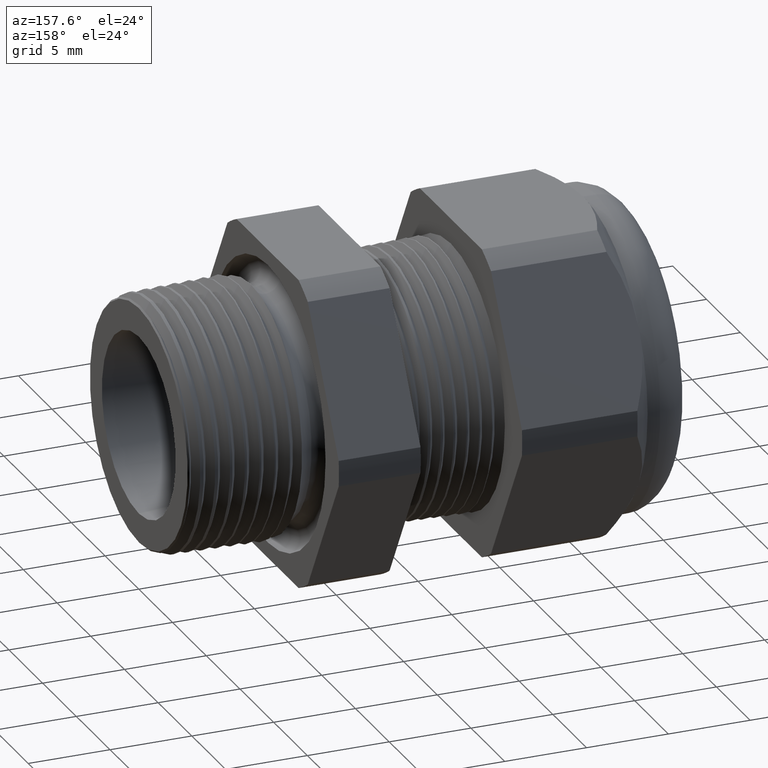
[diagram: clean part render]
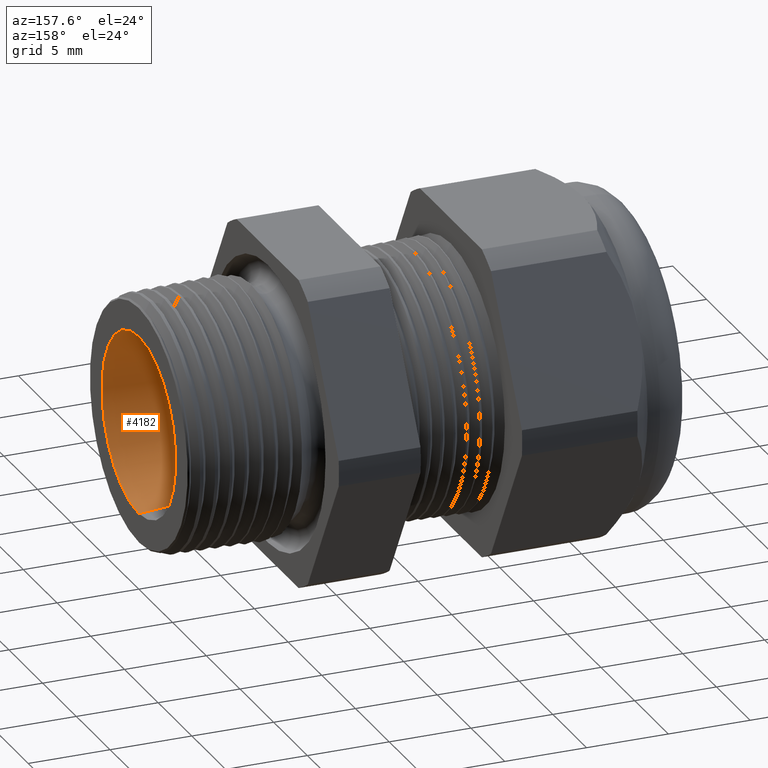
[diagram: same view with one face highlighted and labeled with its STEP entity id]
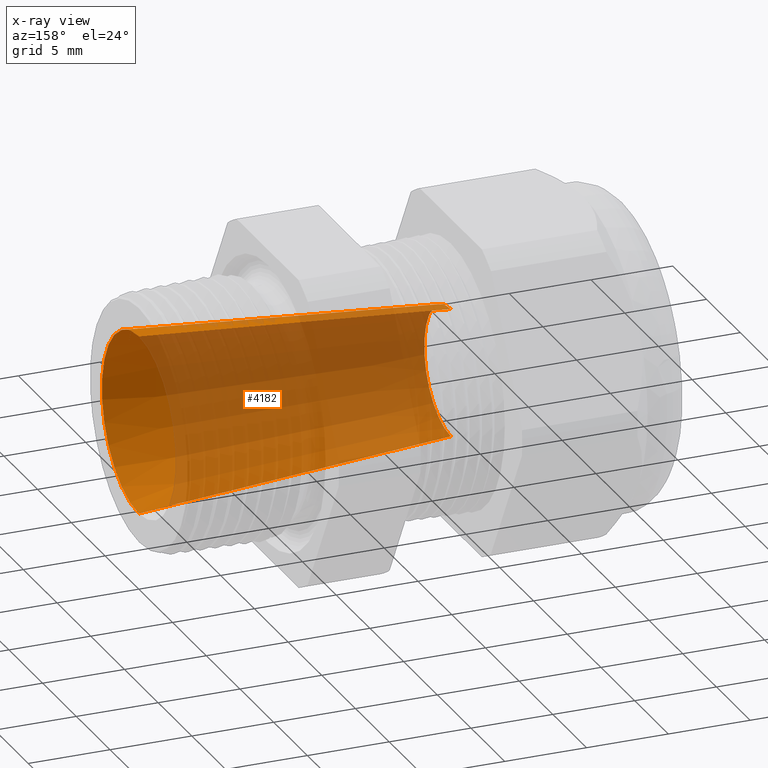
[diagram: x-ray of the same camera — body ghosted, the highlighted face saturated]
A machine part, auxiliary view. The second image highlights one B-rep face of the part: STEP entity #4182.
The next image is the same camera in x-ray: the body ghosted, the highlighted face saturated — about 79% of this face is hidden behind the body in this view.
In plain terms, the highlighted conical surface has half-angle 4.594 deg.
Its self-contained STEP definition (entity closure, byte-faithful):
#75 = VERTEX_POINT ( 'NONE', #1384 ) ;
#1384 = CARTESIAN_POINT ( 'NONE',  ( -0.7508661417322833900, 0.0000000000000000000, -0.1550000000000000000 ) ) ;
#3520 = CARTESIAN_POINT ( 'NONE',  ( -0.7508661417322833900, 2.267665485113262000E-017, 0.1550000000000000000 ) ) ;
#3531 = DIRECTION ( 'NONE',  ( 0.0000000000000000000, 0.0000000000000000000, -1.000000000000000000 ) ) ;
#3532 = DIRECTION ( 'NONE',  ( 1.000000000000000000, 0.0000000000000000000, 0.0000000000000000000 ) ) ;
#3533 = CARTESIAN_POINT ( 'NONE',  ( -0.7508661417322833900, 0.0000000000000000000, 0.0000000000000000000 ) ) ;
#3534 = AXIS2_PLACEMENT_3D ( 'NONE', #3533, #3532, #3531 ) ;
#3535 = CIRCLE ( 'NONE', #3534, 0.1550000000000000000 ) ;
#3536 = FACE_OUTER_BOUND ( 'NONE', #4184, .T. ) ;
#3537 = CARTESIAN_POINT ( 'NONE',  ( 0.0000000000000000000, 2.637128431548127100E-017, 0.2153378781036457400 ) ) ;
#3543 = DIRECTION ( 'NONE',  ( 0.9967868727108976100, 0.0000000000000000000, -0.08009950306480641300 ) ) ;
#3544 = VECTOR ( 'NONE', #3543, 39.37007874015748900 ) ;
#3545 = CARTESIAN_POINT ( 'NONE',  ( -0.7508661417322833900, 0.0000000000000000000, -0.1550000000000000000 ) ) ;
#3546 = LINE ( 'NONE', #3545, #3544 ) ;
#3547 = CARTESIAN_POINT ( 'NONE',  ( 0.0000000000000000000, 0.0000000000000000000, -0.2153378781036457400 ) ) ;
#3571 = DIRECTION ( 'NONE',  ( 0.0000000000000000000, 0.0000000000000000000, -1.000000000000000000 ) ) ;
#3572 = DIRECTION ( 'NONE',  ( 1.000000000000000000, 0.0000000000000000000, 0.0000000000000000000 ) ) ;
#3573 = CARTESIAN_POINT ( 'NONE',  ( 0.0000000000000000000, 0.0000000000000000000, 0.0000000000000000000 ) ) ;
#3574 = AXIS2_PLACEMENT_3D ( 'NONE', #3573, #3572, #3571 ) ;
#3575 = CIRCLE ( 'NONE', #3574, 0.2153378781036457400 ) ;
#3580 = DIRECTION ( 'NONE',  ( 0.9967868727108976100, 9.809360004160878300E-018, 0.08009950306480641300 ) ) ;
#3581 = VECTOR ( 'NONE', #3580, 39.37007874015748900 ) ;
#3582 = CARTESIAN_POINT ( 'NONE',  ( -0.7508661417322833900, 1.898202538678397300E-017, 0.1550000000000000000 ) ) ;
#3583 = LINE ( 'NONE', #3582, #3581 ) ;
#3587 = DIRECTION ( 'NONE',  ( 0.0000000000000000000, 0.0000000000000000000, -1.000000000000000000 ) ) ;
#3588 = DIRECTION ( 'NONE',  ( 1.000000000000000000, 0.0000000000000000000, 0.0000000000000000000 ) ) ;
#3589 = CARTESIAN_POINT ( 'NONE',  ( -0.7508661417322833900, 0.0000000000000000000, 0.0000000000000000000 ) ) ;
#3590 = AXIS2_PLACEMENT_3D ( 'NONE', #3589, #3588, #3587 ) ;
#3592 = CONICAL_SURFACE ( 'NONE', #3590, 0.1550000000000000000, 0.08018540344487304300 ) ;
#4150 = EDGE_CURVE ( 'NONE', #4155, #75, #3535, .T. ) ;
#4155 = VERTEX_POINT ( 'NONE', #3520 ) ;
#4173 = VERTEX_POINT ( 'NONE', #3547 ) ;
#4175 = EDGE_CURVE ( 'NONE', #75, #4173, #3546, .T. ) ;
#4178 = ORIENTED_EDGE ( 'NONE', *, *, #4175, .F. ) ;
#4179 = VERTEX_POINT ( 'NONE', #3537 ) ;
#4180 = ORIENTED_EDGE ( 'NONE', *, *, #4190, .T. ) ;
#4182 = ADVANCED_FACE ( 'NONE', ( #3536 ), #3592, .F. ) ;
#4183 = ORIENTED_EDGE ( 'NONE', *, *, #4187, .T. ) ;
#4184 = EDGE_LOOP ( 'NONE', ( #4185, #4183, #4180, #4178 ) ) ;
#4185 = ORIENTED_EDGE ( 'NONE', *, *, #4150, .F. ) ;
#4187 = EDGE_CURVE ( 'NONE', #4155, #4179, #3583, .T. ) ;
#4190 = EDGE_CURVE ( 'NONE', #4179, #4173, #3575, .T. ) ;